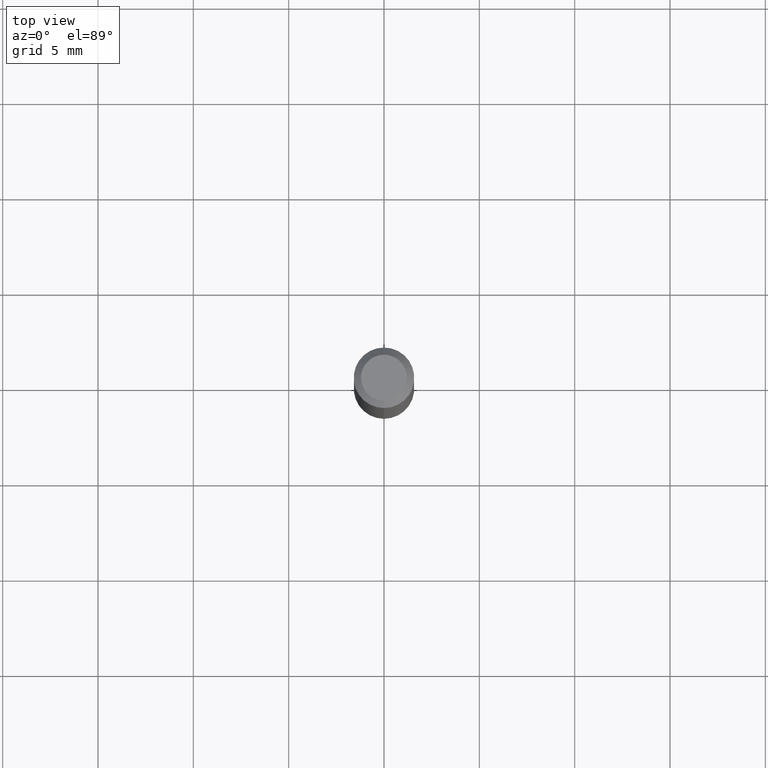
[diagram: clean part render]
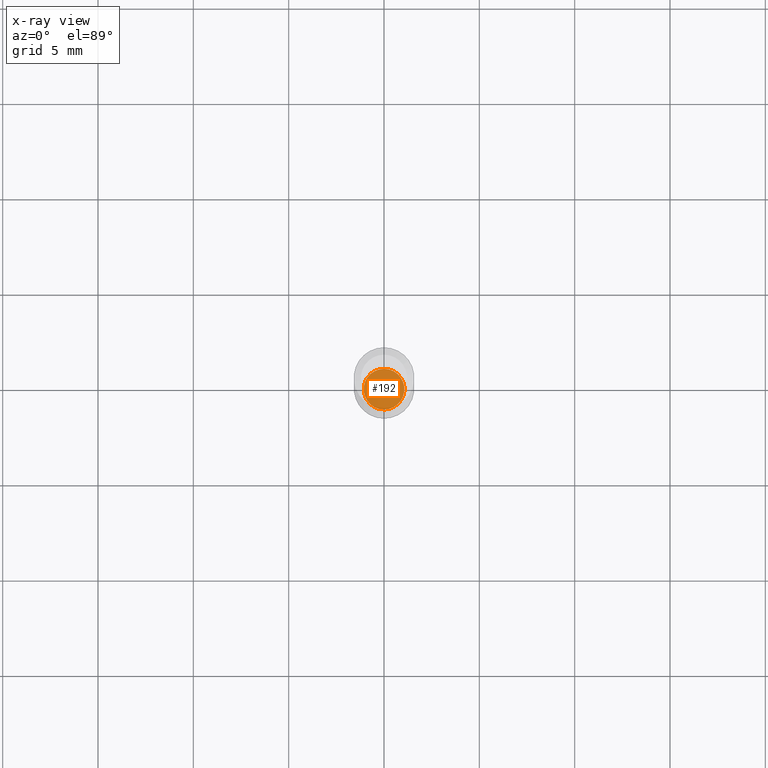
[diagram: x-ray — body ghosted, one internal face saturated and labeled with its STEP entity id]
A machine part, top view, then the same camera in x-ray: the body is ghosted and one INTERNAL B-rep face — a face not visible from any outside direction — is saturated and labeled: STEP entity #192.
In plain terms, the highlighted planar face has unit normal (-0, 0, 1).
Its self-contained STEP definition (entity closure, byte-faithful):
#1 = DIRECTION ( 'NONE',  ( -2.445382581440065558E-29, 3.491604817585695240E-15, 1.000000000000000000 ) ) ;
#14 = ORIENTED_EDGE ( 'NONE', *, *, #445, .F. ) ;
#54 = AXIS2_PLACEMENT_3D ( 'NONE', #314, #272, #110 ) ;
#110 = DIRECTION ( 'NONE',  ( -6.982962677686265922E-15, -1.000000000000000000, 6.504399984914913214E-15 ) ) ;
#127 = AXIS2_PLACEMENT_3D ( 'NONE', #352, #423, #274 ) ;
#128 = AXIS2_PLACEMENT_3D ( 'NONE', #477, #1, #396 ) ;
#170 = EDGE_CURVE ( 'NONE', #301, #428, #214, .T. ) ;
#175 = EDGE_LOOP ( 'NONE', ( #14, #409 ) ) ;
#192 = ADVANCED_FACE ( 'NONE', ( #430 ), #470, .F. ) ;
#214 = CIRCLE ( 'NONE', #54, 0.04199999999999999567 ) ;
#272 = DIRECTION ( 'NONE',  ( -2.445382581440065558E-29, 3.491604817585695240E-15, 1.000000000000000000 ) ) ;
#274 = DIRECTION ( 'NONE',  ( -6.982962677686265922E-15, -1.000000000000000000, 3.491604817585695634E-15 ) ) ;
#287 = CARTESIAN_POINT ( 'NONE',  ( -2.932844324627895747E-16, -0.04200000000000478351, -1.371999999999999664 ) ) ;
#301 = VERTEX_POINT ( 'NONE', #361 ) ;
#314 = CARTESIAN_POINT ( 'NONE',  ( 3.355064901735769338E-29, -4.790481809727574147E-15, -1.372000000000000108 ) ) ;
#348 = CIRCLE ( 'NONE', #128, 0.04199999999999999567 ) ;
#352 = CARTESIAN_POINT ( 'NONE',  ( 3.355064901735769338E-29, -4.790481809727574147E-15, -1.372000000000000108 ) ) ;
#361 = CARTESIAN_POINT ( 'NONE',  ( 3.002043058586754808E-16, 0.04199999999999520783, -1.372000000000000330 ) ) ;
#396 = DIRECTION ( 'NONE',  ( -6.982962677686265922E-15, -1.000000000000000000, 6.504399984914913214E-15 ) ) ;
#409 = ORIENTED_EDGE ( 'NONE', *, *, #170, .F. ) ;
#423 = DIRECTION ( 'NONE',  ( -2.445382581440064717E-29, 3.491604817585695634E-15, 1.000000000000000000 ) ) ;
#428 = VERTEX_POINT ( 'NONE', #287 ) ;
#430 = FACE_OUTER_BOUND ( 'NONE', #175, .T. ) ;
#445 = EDGE_CURVE ( 'NONE', #428, #301, #348, .T. ) ;
#470 = PLANE ( 'NONE',  #127 ) ;
#477 = CARTESIAN_POINT ( 'NONE',  ( 3.355064901735769338E-29, -4.790481809727574147E-15, -1.372000000000000108 ) ) ;